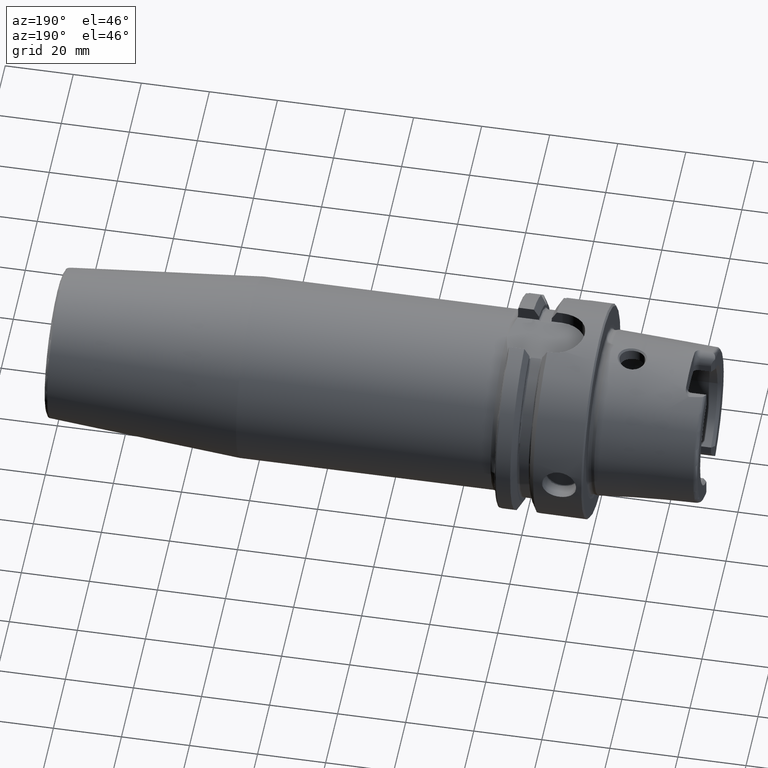
[diagram: clean part render]
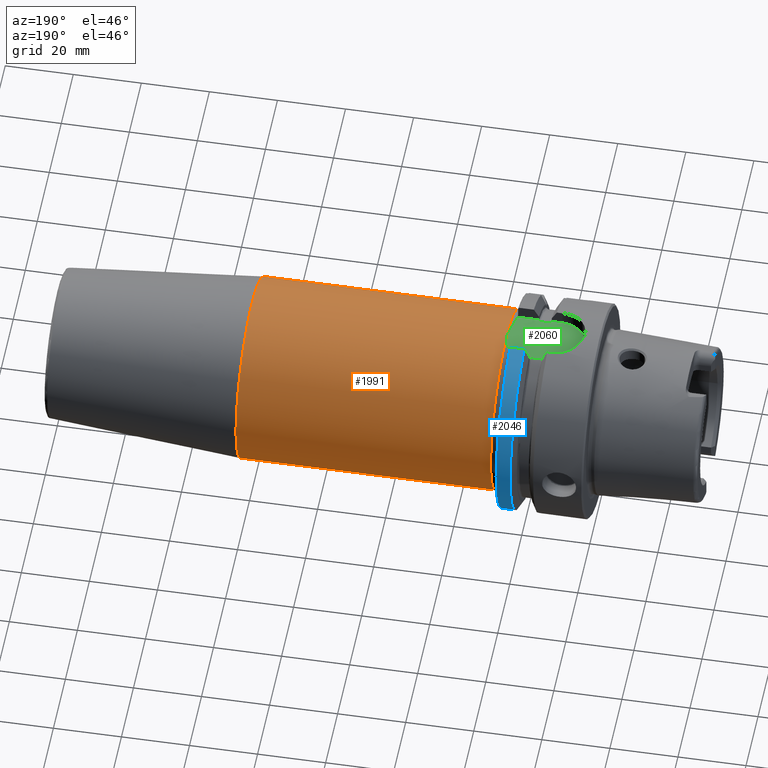
[diagram: same view with three faces highlighted in distinct colors, each labeled with its STEP entity id]
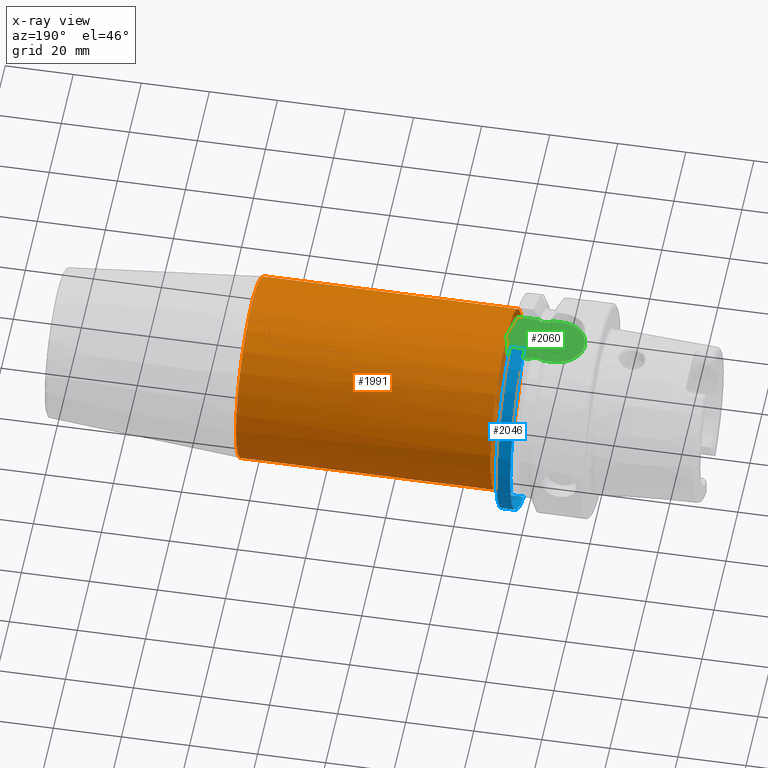
[diagram: x-ray of the same camera — body ghosted, the three highlighted faces saturated]
A machine part, auxiliary view with three faces highlighted in distinct colors.
The next image is the same camera in x-ray (body ghosted, the three faces saturated) — at least one of them is partly hidden behind the body in this view.
Their STEP definitions:

[orange] entity #1991 — the highlighted cylindrical surface (bore or boss wall) has radius 26.5 mm, axis along (1, 0, 0).
#186=CYLINDRICAL_SURFACE('',#2149,26.5);
#227=FACE_OUTER_BOUND('',#347,.T.);
#347=EDGE_LOOP('',(#1367,#1368,#1369,#1370,#1371,#1372));
#474=LINE('',#3070,#578);
#578=VECTOR('',#2435,26.5);
#684=CIRCLE('',#2139,26.5);
#686=CIRCLE('',#2142,26.5);
#687=CIRCLE('',#2143,26.5);
#691=CIRCLE('',#2150,26.5);
#809=VERTEX_POINT('',#3009);
#814=VERTEX_POINT('',#3026);
#815=VERTEX_POINT('',#3033);
#816=VERTEX_POINT('',#3035);
#1020=EDGE_CURVE('',#809,#809,#684,.T.);
#1025=EDGE_CURVE('',#814,#815,#686,.T.);
#1026=EDGE_CURVE('',#815,#816,#687,.T.);
#1037=EDGE_CURVE('',#809,#815,#474,.T.);
#1038=EDGE_CURVE('',#816,#814,#691,.T.);
#1367=ORIENTED_EDGE('',*,*,#1020,.F.);
#1368=ORIENTED_EDGE('',*,*,#1037,.T.);
#1369=ORIENTED_EDGE('',*,*,#1025,.F.);
#1370=ORIENTED_EDGE('',*,*,#1038,.F.);
#1371=ORIENTED_EDGE('',*,*,#1026,.F.);
#1372=ORIENTED_EDGE('',*,*,#1037,.F.);
#1991=ADVANCED_FACE('',(#227),#186,.T.);
#2139=AXIS2_PLACEMENT_3D('',#3011,#2409,#2410);
#2142=AXIS2_PLACEMENT_3D('',#3034,#2415,#2416);
#2143=AXIS2_PLACEMENT_3D('',#3036,#2417,#2418);
#2149=AXIS2_PLACEMENT_3D('',#3069,#2433,#2434);
#2150=AXIS2_PLACEMENT_3D('',#3071,#2436,#2437);
#2409=DIRECTION('center_axis',(1.,0.,0.));
#2410=DIRECTION('ref_axis',(0.,0.,-1.));
#2415=DIRECTION('center_axis',(-1.,0.,0.));
#2416=DIRECTION('ref_axis',(0.,-1.,-1.22464679914735E-16));
#2417=DIRECTION('center_axis',(-1.,0.,0.));
#2418=DIRECTION('ref_axis',(0.,-1.,-1.22464679914735E-16));
#2433=DIRECTION('center_axis',(1.,0.,0.));
#2434=DIRECTION('ref_axis',(0.,1.,0.));
#2435=DIRECTION('',(-1.,0.,0.));
#2436=DIRECTION('center_axis',(-1.,0.,0.));
#2437=DIRECTION('ref_axis',(0.,1.,0.));
#3009=CARTESIAN_POINT('',(102.822078687214,-26.5,-3.24531401774049E-15));
#3011=CARTESIAN_POINT('Origin',(102.822078687214,0.,0.));
#3026=CARTESIAN_POINT('',(28.,0.,-26.5));
#3033=CARTESIAN_POINT('',(28.,-26.5,-3.24531401774049E-15));
#3034=CARTESIAN_POINT('Origin',(28.,0.,0.));
#3035=CARTESIAN_POINT('',(28.,0.,26.5));
#3036=CARTESIAN_POINT('Origin',(28.,0.,0.));
#3069=CARTESIAN_POINT('Origin',(64.4110393436069,0.,0.));
#3070=CARTESIAN_POINT('',(64.4110393436069,-26.5,-3.24531401774049E-15));
#3071=CARTESIAN_POINT('Origin',(28.,0.,0.));

[blue] entity #2046 — the highlighted cylindrical surface (partial cylindrical patch) has radius 31.5 mm, axis along (1, 0, 0).
#202=CYLINDRICAL_SURFACE('',#2266,31.5);
#282=FACE_OUTER_BOUND('',#406,.T.);
#406=EDGE_LOOP('',(#1679,#1680,#1681,#1682));
#529=LINE('',#4046,#633);
#543=LINE('',#4226,#647);
#633=VECTOR('',#2678,10.);
#647=VECTOR('',#2740,10.);
#745=CIRCLE('',#2263,31.5);
#747=CIRCLE('',#2267,31.5);
#936=VERTEX_POINT('',#4022);
#940=VERTEX_POINT('',#4042);
#965=VERTEX_POINT('',#4209);
#966=VERTEX_POINT('',#4224);
#1196=EDGE_CURVE('',#936,#940,#529,.T.);
#1232=EDGE_CURVE('',#936,#965,#745,.T.);
#1235=EDGE_CURVE('',#940,#966,#747,.T.);
#1236=EDGE_CURVE('',#966,#965,#543,.T.);
#1679=ORIENTED_EDGE('',*,*,#1196,.T.);
#1680=ORIENTED_EDGE('',*,*,#1235,.T.);
#1681=ORIENTED_EDGE('',*,*,#1236,.T.);
#1682=ORIENTED_EDGE('',*,*,#1232,.F.);
#2046=ADVANCED_FACE('',(#282),#202,.T.);
#2263=AXIS2_PLACEMENT_3D('',#4210,#2730,#2731);
#2266=AXIS2_PLACEMENT_3D('',#4223,#2736,#2737);
#2267=AXIS2_PLACEMENT_3D('',#4225,#2738,#2739);
#2678=DIRECTION('',(-1.,0.,0.));
#2730=DIRECTION('center_axis',(1.,0.,0.));
#2731=DIRECTION('ref_axis',(0.,0.,-1.));
#2736=DIRECTION('center_axis',(1.,0.,0.));
#2737=DIRECTION('ref_axis',(0.,1.,0.));
#2738=DIRECTION('center_axis',(1.,0.,0.));
#2739=DIRECTION('ref_axis',(0.,0.,-1.));
#2740=DIRECTION('',(1.,0.,0.));
#4022=CARTESIAN_POINT('',(25.5,9.,-30.1869176962472));
#4042=CARTESIAN_POINT('',(21.3774990747593,9.,-30.1869176962472));
#4046=CARTESIAN_POINT('',(23.4387495373797,9.,-30.1869176962472));
#4209=CARTESIAN_POINT('',(25.5,8.,30.4671954731642));
#4210=CARTESIAN_POINT('Origin',(25.5,0.,0.));
#4223=CARTESIAN_POINT('Origin',(23.4387495373797,0.,0.));
#4224=CARTESIAN_POINT('',(21.3774990747593,8.,30.4671954731642));
#4225=CARTESIAN_POINT('Origin',(21.3774990747593,0.,0.));
#4226=CARTESIAN_POINT('',(23.4387495373797,8.,30.4671954731642));

[green] entity #2060 — the highlighted planar face has unit normal (0, 0, 1).
#42=B_SPLINE_CURVE_WITH_KNOTS('',3,(#3038,#3039,#3040,#3041,#3042,#3043),
 .UNSPECIFIED.,.F.,.F.,(4,2,4),(0.,0.504543001939792,0.767530689085053),
 .UNSPECIFIED.);
#47=B_SPLINE_CURVE_WITH_KNOTS('',3,(#3088,#3089,#3090,#3091,#3092,#3093),
 .UNSPECIFIED.,.F.,.F.,(4,2,4),(2.27411022205255,2.53709790919781,3.04164091113761),
 .UNSPECIFIED.);
#94=B_SPLINE_CURVE_WITH_KNOTS('',3,(#4177,#4178,#4179,#4180,#4181,#4182,
#4183,#4184,#4185,#4186),.UNSPECIFIED.,.F.,.F.,(4,2,2,2,4),(0.252714277572707,
0.289228035148658,0.316691561230897,0.323545183976989,0.328785692776271),
 .UNSPECIFIED.);
#95=B_SPLINE_CURVE_WITH_KNOTS('',3,(#4192,#4193,#4194,#4195,#4196,#4197,
#4198,#4199,#4200,#4201),.UNSPECIFIED.,.F.,.F.,(4,2,2,2,4),(0.328785692776271,
0.334026201575553,0.340879824321645,0.368343350403883,0.404857107979834),
 .UNSPECIFIED.);
#98=B_SPLINE_CURVE_WITH_KNOTS('',3,(#4246,#4247,#4248,#4249,#4250,#4251,
#4252,#4253,#4254,#4255),.UNSPECIFIED.,.F.,.F.,(4,2,2,2,4),(0.32878569277627,
0.334026201575551,0.340879824321645,0.368343350403882,0.404857107979833),
 .UNSPECIFIED.);
#101=B_SPLINE_CURVE_WITH_KNOTS('',3,(#4272,#4273,#4274,#4275,#4276,#4277,
#4278,#4279,#4280,#4281),.UNSPECIFIED.,.F.,.F.,(4,2,2,2,4),(0.252714277572707,
0.289228035148658,0.316691561230896,0.323545183976989,0.32878569277627),
 .UNSPECIFIED.);
#150=PLANE('',#2287);
#296=FACE_OUTER_BOUND('',#420,.T.);
#420=EDGE_LOOP('',(#1751,#1752,#1753,#1754,#1755,#1756,#1757,#1758,#1759,
#1760,#1761,#1762,#1763));
#544=LINE('',#4231,#648);
#545=LINE('',#4236,#649);
#547=LINE('',#4285,#651);
#548=LINE('',#4288,#652);
#552=LINE('',#4320,#656);
#554=LINE('',#4323,#658);
#648=VECTOR('',#2747,10.);
#649=VECTOR('',#2754,10.);
#651=VECTOR('',#2772,10.);
#652=VECTOR('',#2775,10.);
#656=VECTOR('',#2785,10.);
#658=VECTOR('',#2789,10.);
#753=CIRCLE('',#2284,8.);
#816=VERTEX_POINT('',#3035);
#817=VERTEX_POINT('',#3037);
#827=VERTEX_POINT('',#3081);
#961=VERTEX_POINT('',#4169);
#962=VERTEX_POINT('',#4176);
#963=VERTEX_POINT('',#4189);
#964=VERTEX_POINT('',#4191);
#967=VERTEX_POINT('',#4230);
#968=VERTEX_POINT('',#4234);
#970=VERTEX_POINT('',#4245);
#972=VERTEX_POINT('',#4265);
#973=VERTEX_POINT('',#4287);
#977=VERTEX_POINT('',#4316);
#1027=EDGE_CURVE('',#816,#817,#42,.T.);
#1042=EDGE_CURVE('',#816,#827,#47,.F.);
#1227=EDGE_CURVE('',#961,#962,#94,.T.);
#1230=EDGE_CURVE('',#963,#964,#95,.T.);
#1238=EDGE_CURVE('',#962,#967,#544,.T.);
#1241=EDGE_CURVE('',#968,#963,#545,.T.);
#1244=EDGE_CURVE('',#967,#970,#98,.T.);
#1248=EDGE_CURVE('',#972,#968,#101,.T.);
#1250=EDGE_CURVE('',#972,#817,#547,.T.);
#1251=EDGE_CURVE('',#973,#964,#548,.T.);
#1256=EDGE_CURVE('',#977,#973,#753,.T.);
#1258=EDGE_CURVE('',#827,#970,#552,.T.);
#1260=EDGE_CURVE('',#961,#977,#554,.T.);
#1751=ORIENTED_EDGE('',*,*,#1230,.F.);
#1752=ORIENTED_EDGE('',*,*,#1241,.F.);
#1753=ORIENTED_EDGE('',*,*,#1248,.F.);
#1754=ORIENTED_EDGE('',*,*,#1250,.T.);
#1755=ORIENTED_EDGE('',*,*,#1027,.F.);
#1756=ORIENTED_EDGE('',*,*,#1042,.T.);
#1757=ORIENTED_EDGE('',*,*,#1258,.T.);
#1758=ORIENTED_EDGE('',*,*,#1244,.F.);
#1759=ORIENTED_EDGE('',*,*,#1238,.F.);
#1760=ORIENTED_EDGE('',*,*,#1227,.F.);
#1761=ORIENTED_EDGE('',*,*,#1260,.T.);
#1762=ORIENTED_EDGE('',*,*,#1256,.T.);
#1763=ORIENTED_EDGE('',*,*,#1251,.T.);
#2060=ADVANCED_FACE('',(#296),#150,.T.);
#2284=AXIS2_PLACEMENT_3D('',#4317,#2780,#2781);
#2287=AXIS2_PLACEMENT_3D('',#4324,#2790,#2791);
#2747=DIRECTION('',(1.,0.,0.));
#2754=DIRECTION('',(-1.,0.,0.));
#2772=DIRECTION('',(1.,3.41607084500048E-16,0.));
#2775=DIRECTION('',(1.,3.41607084500048E-16,0.));
#2780=DIRECTION('center_axis',(0.,0.,1.));
#2781=DIRECTION('ref_axis',(0.,1.,0.));
#2785=DIRECTION('',(-1.,-2.56205313375036E-16,0.));
#2789=DIRECTION('',(-1.,-2.56205313375036E-16,0.));
#2790=DIRECTION('center_axis',(0.,0.,1.));
#2791=DIRECTION('ref_axis',(1.,0.,0.));
#3035=CARTESIAN_POINT('',(28.,0.,26.5));
#3037=CARTESIAN_POINT('',(26.175280551541,-8.,26.4999999998768));
#3038=CARTESIAN_POINT('Ctrl Pts',(28.,0.,26.5));
#3039=CARTESIAN_POINT('Ctrl Pts',(27.5544776456,-1.62172584908145,26.5));
#3040=CARTESIAN_POINT('Ctrl Pts',(27.0599925000597,-3.40403280438227,26.5));
#3041=CARTESIAN_POINT('Ctrl Pts',(26.4683010524078,-6.13627889480141,26.5));
#3042=CARTESIAN_POINT('Ctrl Pts',(26.2950619213893,-7.07633608760457,26.5));
#3043=CARTESIAN_POINT('Ctrl Pts',(26.175280551437,-7.99999999998649,26.5));
#3081=CARTESIAN_POINT('',(26.175280551541,8.,26.4999999998768));
#3088=CARTESIAN_POINT('Ctrl Pts',(26.175280551437,7.9999999999865,26.5));
#3089=CARTESIAN_POINT('Ctrl Pts',(26.2950619213893,7.07633608760457,26.5));
#3090=CARTESIAN_POINT('Ctrl Pts',(26.4683010524078,6.13627889480141,26.5));
#3091=CARTESIAN_POINT('Ctrl Pts',(27.0599925000597,3.40403280438227,26.5));
#3092=CARTESIAN_POINT('Ctrl Pts',(27.5544776456,1.62172584908145,26.5));
#3093=CARTESIAN_POINT('Ctrl Pts',(28.,0.,26.5));
#4169=CARTESIAN_POINT('',(16.2397987608563,8.,26.5));
#4176=CARTESIAN_POINT('',(16.625,7.34846922834952,26.5));
#4177=CARTESIAN_POINT('Ctrl Pts',(16.2397987608563,8.,26.5));
#4178=CARTESIAN_POINT('Ctrl Pts',(16.2699372185845,7.87398729043679,26.5));
#4179=CARTESIAN_POINT('Ctrl Pts',(16.3063113289614,7.75248496685372,26.5));
#4180=CARTESIAN_POINT('Ctrl Pts',(16.3906456489289,7.5566112023157,26.5));
#4181=CARTESIAN_POINT('Ctrl Pts',(16.4411490019356,7.4590543697872,26.5));
#4182=CARTESIAN_POINT('Ctrl Pts',(16.5270295504762,7.38349170057081,26.5));
#4183=CARTESIAN_POINT('Ctrl Pts',(16.5496994821687,7.36807649661538,26.5));
#4184=CARTESIAN_POINT('Ctrl Pts',(16.587038394856,7.35287762173868,26.5));
#4185=CARTESIAN_POINT('Ctrl Pts',(16.6075316373357,7.34846922834952,26.5));
#4186=CARTESIAN_POINT('Ctrl Pts',(16.625,7.34846922834952,26.5));
#4189=CARTESIAN_POINT('',(16.625,-7.34846922834952,26.5));
#4191=CARTESIAN_POINT('',(16.2397987608563,-8.,26.5));
#4192=CARTESIAN_POINT('Ctrl Pts',(16.625,-7.34846922834952,26.5));
#4193=CARTESIAN_POINT('Ctrl Pts',(16.6075316373357,-7.34846922834952,26.5));
#4194=CARTESIAN_POINT('Ctrl Pts',(16.587038394856,-7.35287762173868,26.5));
#4195=CARTESIAN_POINT('Ctrl Pts',(16.5496994821687,-7.36807649661538,26.5));
#4196=CARTESIAN_POINT('Ctrl Pts',(16.5270295504762,-7.38349170057081,26.5));
#4197=CARTESIAN_POINT('Ctrl Pts',(16.4411490019356,-7.4590543697872,26.5));
#4198=CARTESIAN_POINT('Ctrl Pts',(16.3906456489289,-7.5566112023157,26.5));
#4199=CARTESIAN_POINT('Ctrl Pts',(16.3063113289614,-7.75248496685372,26.5));
#4200=CARTESIAN_POINT('Ctrl Pts',(16.2699372185845,-7.87398729043679,26.5));
#4201=CARTESIAN_POINT('Ctrl Pts',(16.2397987608563,-8.,26.5));
#4230=CARTESIAN_POINT('',(19.375,7.34846922834952,26.5));
#4231=CARTESIAN_POINT('',(18.,7.34846922834952,26.5));
#4234=CARTESIAN_POINT('',(19.375,-7.34846922834952,26.5));
#4236=CARTESIAN_POINT('',(18.,-7.34846922834952,26.5));
#4245=CARTESIAN_POINT('',(19.7602012391437,8.,26.5));
#4246=CARTESIAN_POINT('Ctrl Pts',(19.375,7.34846922834952,26.5));
#4247=CARTESIAN_POINT('Ctrl Pts',(19.3924683626643,7.34846922834952,26.5));
#4248=CARTESIAN_POINT('Ctrl Pts',(19.412961605144,7.35287762173868,26.5));
#4249=CARTESIAN_POINT('Ctrl Pts',(19.4503005178313,7.36807649661538,26.5));
#4250=CARTESIAN_POINT('Ctrl Pts',(19.4729704495238,7.38349170057082,26.5));
#4251=CARTESIAN_POINT('Ctrl Pts',(19.5588509980644,7.45905436978721,26.5));
#4252=CARTESIAN_POINT('Ctrl Pts',(19.6093543510711,7.5566112023157,26.5));
#4253=CARTESIAN_POINT('Ctrl Pts',(19.6936886710386,7.75248496685372,26.5));
#4254=CARTESIAN_POINT('Ctrl Pts',(19.7300627814155,7.87398729043679,26.5));
#4255=CARTESIAN_POINT('Ctrl Pts',(19.7602012391437,8.,26.5));
#4265=CARTESIAN_POINT('',(19.7602012391437,-8.,26.5));
#4272=CARTESIAN_POINT('Ctrl Pts',(19.7602012391436,-8.,26.5));
#4273=CARTESIAN_POINT('Ctrl Pts',(19.7300627814155,-7.87398729043679,26.5));
#4274=CARTESIAN_POINT('Ctrl Pts',(19.6936886710386,-7.75248496685372,26.5));
#4275=CARTESIAN_POINT('Ctrl Pts',(19.6093543510711,-7.5566112023157,26.5));
#4276=CARTESIAN_POINT('Ctrl Pts',(19.5588509980644,-7.45905436978721,26.5));
#4277=CARTESIAN_POINT('Ctrl Pts',(19.4729704495238,-7.38349170057082,26.5));
#4278=CARTESIAN_POINT('Ctrl Pts',(19.4503005178313,-7.36807649661538,26.5));
#4279=CARTESIAN_POINT('Ctrl Pts',(19.412961605144,-7.35287762173868,26.5));
#4280=CARTESIAN_POINT('Ctrl Pts',(19.3924683626643,-7.34846922834952,26.5));
#4281=CARTESIAN_POINT('Ctrl Pts',(19.375,-7.34846922834952,26.5));
#4285=CARTESIAN_POINT('',(13.,-8.,26.5));
#4287=CARTESIAN_POINT('',(13.,-8.,26.5));
#4288=CARTESIAN_POINT('',(13.,-8.,26.5));
#4316=CARTESIAN_POINT('',(13.,8.,26.5));
#4317=CARTESIAN_POINT('Origin',(13.,0.,26.5));
#4320=CARTESIAN_POINT('',(20.75,8.,26.5));
#4323=CARTESIAN_POINT('',(26.,8.,26.5));
#4324=CARTESIAN_POINT('Origin',(15.5,1.11022302462516E-15,26.5));